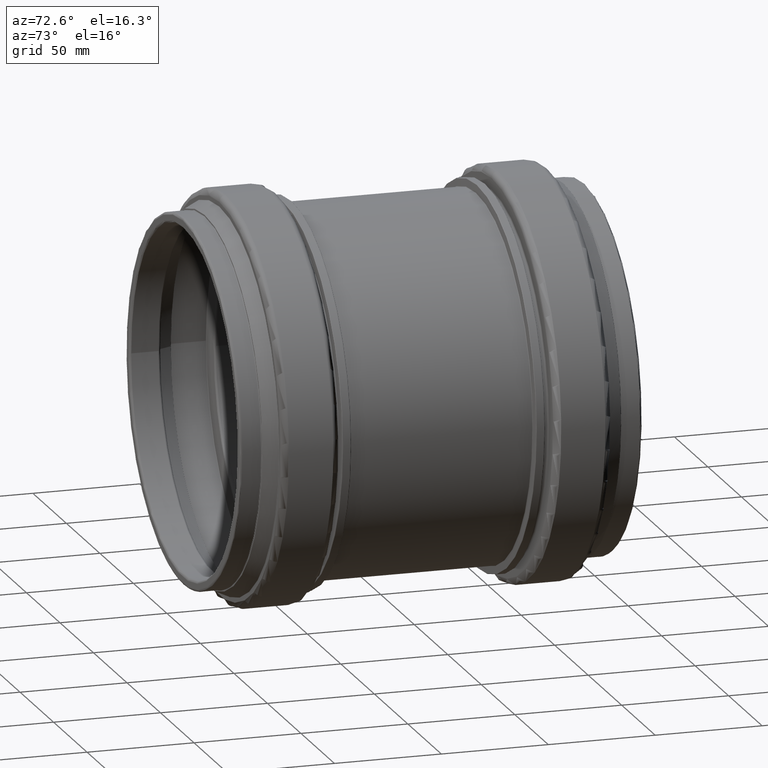
[diagram: clean part render]
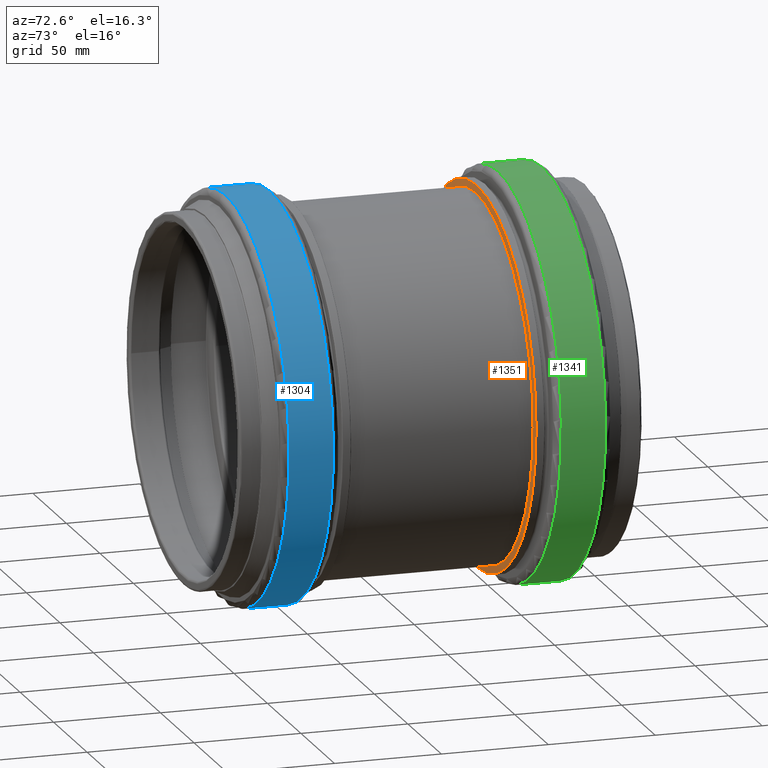
[diagram: same view with three faces highlighted in distinct colors, each labeled with its STEP entity id]
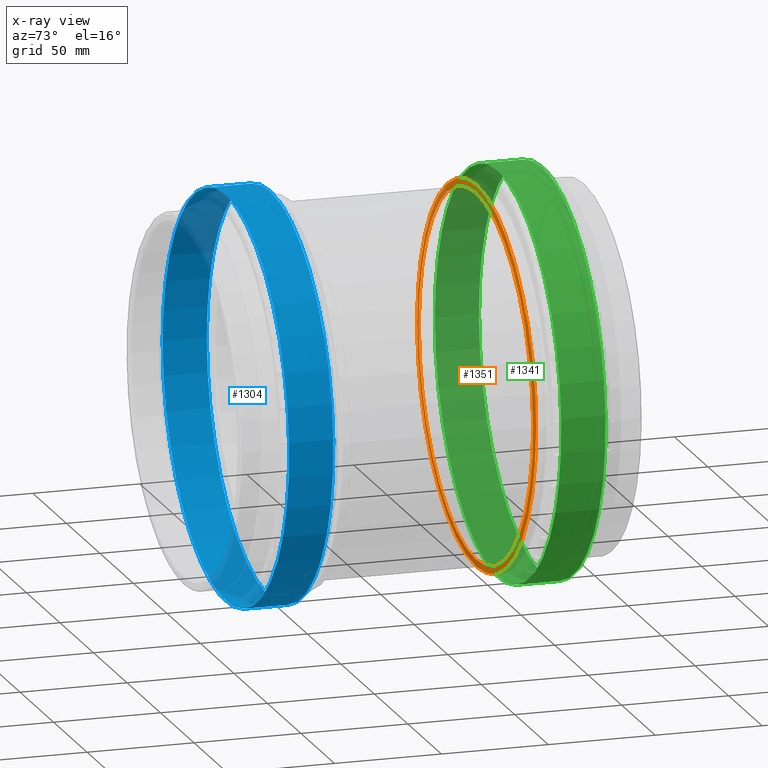
[diagram: x-ray of the same camera — body ghosted, the three highlighted faces saturated]
A machine part, auxiliary view with three faces highlighted in distinct colors.
The next image is the same camera in x-ray (body ghosted, the three faces saturated) — at least one of them is partly hidden behind the body in this view.
Their STEP definitions:

[orange] entity #1351 — the highlighted conical surface has half-angle 85 deg.
#23=CONICAL_SURFACE('',#1581,87.05,1.48352986419518);
#48=LINE('',#2470,#78);
#78=VECTOR('',#2038,87.05);
#182=FACE_OUTER_BOUND('',#267,.T.);
#267=EDGE_LOOP('',(#1079,#1080,#1081,#1082,#1083,#1084));
#414=CIRCLE('',#1578,88.7761467228243);
#415=CIRCLE('',#1579,88.7761467228243);
#417=CIRCLE('',#1582,85.3238532771757);
#418=CIRCLE('',#1583,85.3238532771757);
#554=VERTEX_POINT('',#2463);
#555=VERTEX_POINT('',#2464);
#556=VERTEX_POINT('',#2469);
#557=VERTEX_POINT('',#2471);
#734=EDGE_CURVE('',#554,#555,#414,.T.);
#735=EDGE_CURVE('',#555,#554,#415,.T.);
#737=EDGE_CURVE('',#554,#556,#48,.T.);
#738=EDGE_CURVE('',#557,#556,#417,.T.);
#739=EDGE_CURVE('',#556,#557,#418,.T.);
#1079=ORIENTED_EDGE('',*,*,#734,.T.);
#1080=ORIENTED_EDGE('',*,*,#735,.T.);
#1081=ORIENTED_EDGE('',*,*,#737,.T.);
#1082=ORIENTED_EDGE('',*,*,#738,.F.);
#1083=ORIENTED_EDGE('',*,*,#739,.F.);
#1084=ORIENTED_EDGE('',*,*,#737,.F.);
#1351=ADVANCED_FACE('',(#182),#23,.T.);
#1578=AXIS2_PLACEMENT_3D('',#2465,#2030,#2031);
#1579=AXIS2_PLACEMENT_3D('',#2466,#2032,#2033);
#1581=AXIS2_PLACEMENT_3D('',#2468,#2036,#2037);
#1582=AXIS2_PLACEMENT_3D('',#2472,#2039,#2040);
#1583=AXIS2_PLACEMENT_3D('',#2473,#2041,#2042);
#2030=DIRECTION('center_axis',(0.,-1.,0.));
#2031=DIRECTION('ref_axis',(1.,0.,0.));
#2032=DIRECTION('center_axis',(0.,-1.,0.));
#2033=DIRECTION('ref_axis',(1.,0.,0.));
#2036=DIRECTION('center_axis',(0.,1.,0.));
#2037=DIRECTION('ref_axis',(1.,0.,0.));
#2038=DIRECTION('',(0.996194698091745,-0.0871557427476599,-1.21998664834562E-16));
#2039=DIRECTION('center_axis',(0.,-1.,0.));
#2040=DIRECTION('ref_axis',(1.,0.,0.));
#2041=DIRECTION('center_axis',(0.,-1.,0.));
#2042=DIRECTION('ref_axis',(1.,0.,0.));
#2463=CARTESIAN_POINT('',(-83.8218751602082,43.2760409427777,1.08719423924743E-14));
#2464=CARTESIAN_POINT('',(4.95427156261608,43.2760409427777,88.7761467228243));
#2465=CARTESIAN_POINT('Origin',(4.95427156261609,43.2760409427777,0.));
#2466=CARTESIAN_POINT('Origin',(4.95427156261609,43.2760409427777,0.));
#2468=CARTESIAN_POINT('Origin',(4.95427156261609,43.1250226729481,0.));
#2469=CARTESIAN_POINT('',(-80.3695817145596,42.9740044031185,1.04491583806812E-14));
#2470=CARTESIAN_POINT('',(-82.0957284373839,43.1250226729481,1.06605503865777E-14));
#2471=CARTESIAN_POINT('',(4.95427156261608,42.9740044031186,85.3238532771757));
#2472=CARTESIAN_POINT('Origin',(4.95427156261609,42.9740044031186,0.));
#2473=CARTESIAN_POINT('Origin',(4.95427156261609,42.9740044031186,0.));

[blue] entity #1304 — the highlighted cylindrical surface (bore or boss wall) has radius 94.4 mm, axis along (0, -1, 0).
#30=LINE('',#2214,#60);
#60=VECTOR('',#1712,94.4);
#89=CYLINDRICAL_SURFACE('',#1427,94.4);
#135=FACE_OUTER_BOUND('',#214,.T.);
#214=EDGE_LOOP('',(#832,#833,#834,#835,#836,#837));
#307=CIRCLE('',#1424,94.4);
#309=CIRCLE('',#1426,94.4);
#310=CIRCLE('',#1428,94.4);
#311=CIRCLE('',#1429,94.4);
#470=VERTEX_POINT('',#2207);
#471=VERTEX_POINT('',#2208);
#472=VERTEX_POINT('',#2213);
#473=VERTEX_POINT('',#2215);
#609=EDGE_CURVE('',#470,#471,#307,.T.);
#611=EDGE_CURVE('',#471,#470,#309,.T.);
#612=EDGE_CURVE('',#470,#472,#30,.T.);
#613=EDGE_CURVE('',#472,#473,#310,.T.);
#614=EDGE_CURVE('',#473,#472,#311,.T.);
#832=ORIENTED_EDGE('',*,*,#609,.F.);
#833=ORIENTED_EDGE('',*,*,#612,.T.);
#834=ORIENTED_EDGE('',*,*,#613,.T.);
#835=ORIENTED_EDGE('',*,*,#614,.T.);
#836=ORIENTED_EDGE('',*,*,#612,.F.);
#837=ORIENTED_EDGE('',*,*,#611,.F.);
#1304=ADVANCED_FACE('',(#135),#89,.T.);
#1424=AXIS2_PLACEMENT_3D('',#2209,#1704,#1705);
#1426=AXIS2_PLACEMENT_3D('',#2211,#1708,#1709);
#1427=AXIS2_PLACEMENT_3D('',#2212,#1710,#1711);
#1428=AXIS2_PLACEMENT_3D('',#2216,#1713,#1714);
#1429=AXIS2_PLACEMENT_3D('',#2217,#1715,#1716);
#1704=DIRECTION('center_axis',(0.,-1.,0.));
#1705=DIRECTION('ref_axis',(1.,0.,0.));
#1708=DIRECTION('center_axis',(0.,-1.,0.));
#1709=DIRECTION('ref_axis',(1.,0.,0.));
#1710=DIRECTION('center_axis',(0.,-1.,0.));
#1711=DIRECTION('ref_axis',(1.,0.,0.));
#1712=DIRECTION('',(0.,1.,0.));
#1713=DIRECTION('center_axis',(0.,-1.,0.));
#1714=DIRECTION('ref_axis',(1.,0.,0.));
#1715=DIRECTION('center_axis',(0.,-1.,0.));
#1716=DIRECTION('ref_axis',(1.,0.,0.));
#2207=CARTESIAN_POINT('',(-89.4457284373839,-74.,-1.1560665783951E-14));
#2208=CARTESIAN_POINT('',(4.9542715626161,-74.,94.4));
#2209=CARTESIAN_POINT('Origin',(4.95427156261609,-74.,0.));
#2211=CARTESIAN_POINT('Origin',(4.95427156261609,-74.,0.));
#2212=CARTESIAN_POINT('Origin',(4.95427156261609,-63.65,0.));
#2213=CARTESIAN_POINT('',(-89.4457284373839,-53.3,-1.1560665783951E-14));
#2214=CARTESIAN_POINT('',(-89.4457284373839,-63.65,-1.1560665783951E-14));
#2215=CARTESIAN_POINT('',(4.9542715626161,-53.3,94.4));
#2216=CARTESIAN_POINT('Origin',(4.95427156261609,-53.3,0.));
#2217=CARTESIAN_POINT('Origin',(4.95427156261609,-53.3,0.));

[green] entity #1341 — the highlighted cylindrical surface (bore or boss wall) has radius 94.4 mm, axis along (0, -1, 0).
#44=LINE('',#2417,#74);
#74=VECTOR('',#1970,94.4);
#96=CYLINDRICAL_SURFACE('',#1548,94.4);
#172=FACE_OUTER_BOUND('',#256,.T.);
#256=EDGE_LOOP('',(#1025,#1026,#1027,#1028,#1029,#1030));
#391=CIRCLE('',#1545,94.4);
#392=CIRCLE('',#1546,94.4);
#394=CIRCLE('',#1549,94.4);
#395=CIRCLE('',#1550,94.4);
#536=VERTEX_POINT('',#2408);
#537=VERTEX_POINT('',#2409);
#538=VERTEX_POINT('',#2414);
#539=VERTEX_POINT('',#2415);
#707=EDGE_CURVE('',#536,#537,#391,.T.);
#708=EDGE_CURVE('',#537,#536,#392,.T.);
#710=EDGE_CURVE('',#538,#539,#394,.T.);
#711=EDGE_CURVE('',#538,#536,#44,.T.);
#712=EDGE_CURVE('',#539,#538,#395,.T.);
#1025=ORIENTED_EDGE('',*,*,#710,.F.);
#1026=ORIENTED_EDGE('',*,*,#711,.T.);
#1027=ORIENTED_EDGE('',*,*,#707,.T.);
#1028=ORIENTED_EDGE('',*,*,#708,.T.);
#1029=ORIENTED_EDGE('',*,*,#711,.F.);
#1030=ORIENTED_EDGE('',*,*,#712,.F.);
#1341=ADVANCED_FACE('',(#172),#96,.T.);
#1545=AXIS2_PLACEMENT_3D('',#2410,#1960,#1961);
#1546=AXIS2_PLACEMENT_3D('',#2411,#1962,#1963);
#1548=AXIS2_PLACEMENT_3D('',#2413,#1966,#1967);
#1549=AXIS2_PLACEMENT_3D('',#2416,#1968,#1969);
#1550=AXIS2_PLACEMENT_3D('',#2418,#1971,#1972);
#1960=DIRECTION('center_axis',(0.,-1.,0.));
#1961=DIRECTION('ref_axis',(1.,0.,0.));
#1962=DIRECTION('center_axis',(0.,-1.,0.));
#1963=DIRECTION('ref_axis',(1.,0.,0.));
#1966=DIRECTION('center_axis',(0.,-1.,0.));
#1967=DIRECTION('ref_axis',(1.,0.,0.));
#1968=DIRECTION('center_axis',(0.,-1.,0.));
#1969=DIRECTION('ref_axis',(1.,0.,0.));
#1970=DIRECTION('',(0.,1.,0.));
#1971=DIRECTION('center_axis',(0.,-1.,0.));
#1972=DIRECTION('ref_axis',(1.,0.,0.));
#2408=CARTESIAN_POINT('',(-89.4457284373839,74.,-1.1560665783951E-14));
#2409=CARTESIAN_POINT('',(4.95427156261608,74.,94.4));
#2410=CARTESIAN_POINT('Origin',(4.95427156261609,74.,0.));
#2411=CARTESIAN_POINT('Origin',(4.95427156261609,74.,0.));
#2413=CARTESIAN_POINT('Origin',(4.95427156261609,63.65,0.));
#2414=CARTESIAN_POINT('',(-89.4457284373839,53.3,-1.1560665783951E-14));
#2415=CARTESIAN_POINT('',(4.95427156261608,53.3,94.4));
#2416=CARTESIAN_POINT('Origin',(4.95427156261609,53.3,0.));
#2417=CARTESIAN_POINT('',(-89.4457284373839,63.65,-1.1560665783951E-14));
#2418=CARTESIAN_POINT('Origin',(4.95427156261609,53.3,0.));